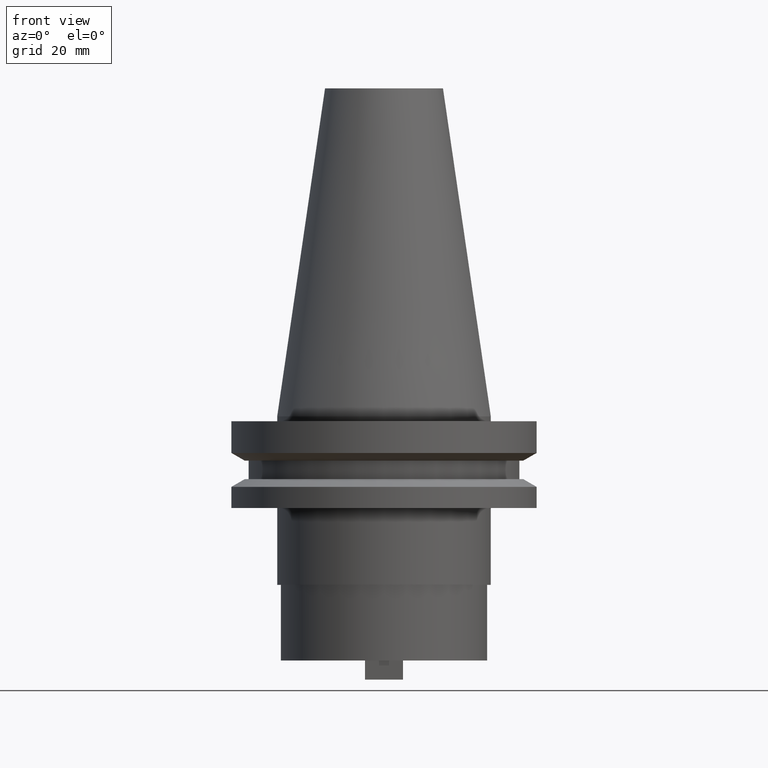
[diagram: clean part render]
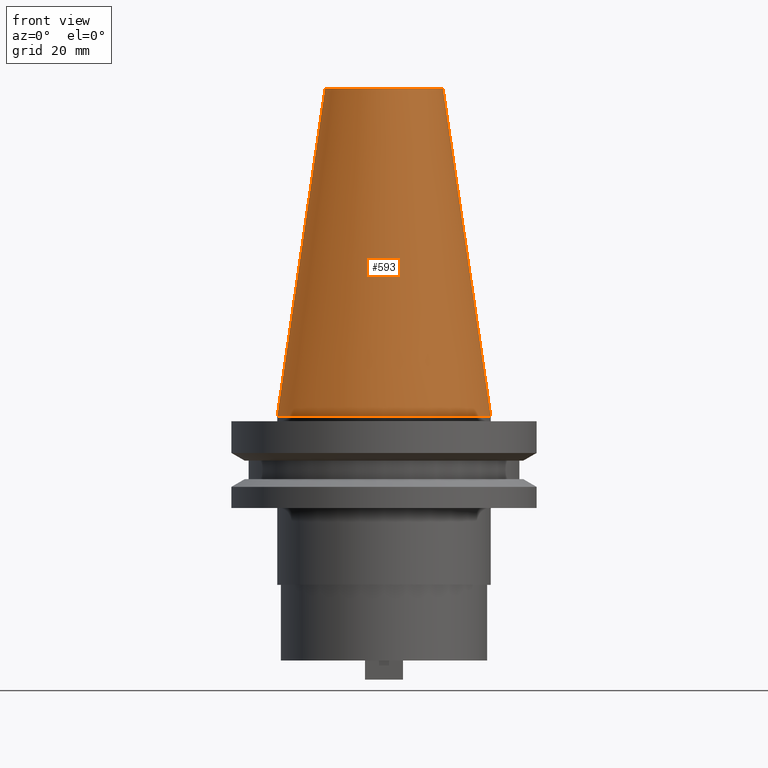
[diagram: same view with one face highlighted and labeled with its STEP entity id]
A machine part, front view. The second image highlights one B-rep face of the part: STEP entity #593.
In plain terms, the highlighted conical surface has half-angle 8.297 deg.
Its self-contained STEP definition (entity closure, byte-faithful):
#2 = CARTESIAN_POINT ( 'NONE',  ( 22.22500000000000142, 2.721777511104992849E-15, 0.000000000000000000 ) ) ;
#89 = EDGE_CURVE ( 'NONE', #375, #510, #415, .T. ) ;
#94 = DIRECTION ( 'NONE',  ( -1.000000000000000000, 0.000000000000000000, 0.000000000000000000 ) ) ;
#144 = CARTESIAN_POINT ( 'NONE',  ( -22.22500000000000142, 0.000000000000000000, 0.000000000000000000 ) ) ;
#148 = DIRECTION ( 'NONE',  ( 1.000000000000000000, 0.000000000000000000, 0.000000000000000000 ) ) ;
#149 = AXIS2_PLACEMENT_3D ( 'NONE', #918, #232, #148 ) ;
#158 = CARTESIAN_POINT ( 'NONE',  ( -22.22500000000000142, 0.000000000000000000, 0.000000000000000000 ) ) ;
#175 = CARTESIAN_POINT ( 'NONE',  ( 0.000000000000000000, 0.000000000000000000, 0.000000000000000000 ) ) ;
#188 = ORIENTED_EDGE ( 'NONE', *, *, #465, .F. ) ;
#232 = DIRECTION ( 'NONE',  ( -0.000000000000000000, -0.000000000000000000, 1.000000000000000000 ) ) ;
#361 = ORIENTED_EDGE ( 'NONE', *, *, #959, .T. ) ;
#375 = VERTEX_POINT ( 'NONE', #726 ) ;
#415 = LINE ( 'NONE', #144, #446 ) ;
#429 = CONICAL_SURFACE ( 'NONE', #991, 22.22500000000000142, 0.1448138465474119174 ) ;
#446 = VECTOR ( 'NONE', #485, 999.9999999999998863 ) ;
#465 = EDGE_CURVE ( 'NONE', #375, #772, #1055, .T. ) ;
#485 = DIRECTION ( 'NONE',  ( -0.1443082272672999711, 0.000000000000000000, -0.9895327864921755756 ) ) ;
#492 = DIRECTION ( 'NONE',  ( 1.000000000000000000, 0.000000000000000000, 0.000000000000000000 ) ) ;
#510 = VERTEX_POINT ( 'NONE', #158 ) ;
#517 = LINE ( 'NONE', #2, #1078 ) ;
#537 = EDGE_LOOP ( 'NONE', ( #747, #188, #1002, #361 ) ) ;
#541 = CARTESIAN_POINT ( 'NONE',  ( 12.27178102086201150, 2.112318622904291439E-15, 68.25000000000000000 ) ) ;
#593 = ADVANCED_FACE ( 'NONE', ( #1086 ), #429, .T. ) ;
#603 = EDGE_CURVE ( 'NONE', #772, #1072, #517, .T. ) ;
#726 = CARTESIAN_POINT ( 'NONE',  ( -12.27178102086201150, 0.000000000000000000, 68.25000000000000000 ) ) ;
#729 = CARTESIAN_POINT ( 'NONE',  ( 0.000000000000000000, 0.000000000000000000, 0.000000000000000000 ) ) ;
#747 = ORIENTED_EDGE ( 'NONE', *, *, #603, .F. ) ;
#754 = DIRECTION ( 'NONE',  ( 0.1443082272672999711, 1.767266086135276757E-17, -0.9895327864921755756 ) ) ;
#771 = DIRECTION ( 'NONE',  ( 0.000000000000000000, 0.000000000000000000, -1.000000000000000000 ) ) ;
#772 = VERTEX_POINT ( 'NONE', #541 ) ;
#855 = CARTESIAN_POINT ( 'NONE',  ( 22.22500000000000142, 2.721777511104992849E-15, 0.000000000000000000 ) ) ;
#896 = DIRECTION ( 'NONE',  ( -0.000000000000000000, -0.000000000000000000, 1.000000000000000000 ) ) ;
#907 = CIRCLE ( 'NONE', #1081, 22.22500000000000142 ) ;
#918 = CARTESIAN_POINT ( 'NONE',  ( 0.000000000000000000, 0.000000000000000000, 68.25000000000000000 ) ) ;
#959 = EDGE_CURVE ( 'NONE', #510, #1072, #907, .T. ) ;
#991 = AXIS2_PLACEMENT_3D ( 'NONE', #175, #771, #94 ) ;
#1002 = ORIENTED_EDGE ( 'NONE', *, *, #89, .T. ) ;
#1055 = CIRCLE ( 'NONE', #149, 12.27178102086201150 ) ;
#1072 = VERTEX_POINT ( 'NONE', #855 ) ;
#1078 = VECTOR ( 'NONE', #754, 999.9999999999998863 ) ;
#1081 = AXIS2_PLACEMENT_3D ( 'NONE', #729, #896, #492 ) ;
#1086 = FACE_OUTER_BOUND ( 'NONE', #537, .T. ) ;